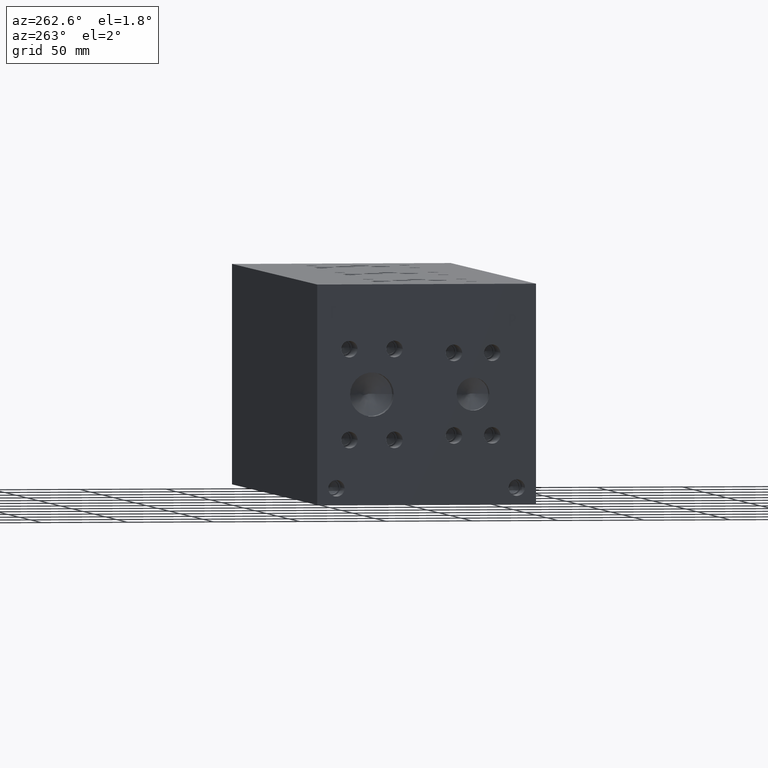
[diagram: clean part render]
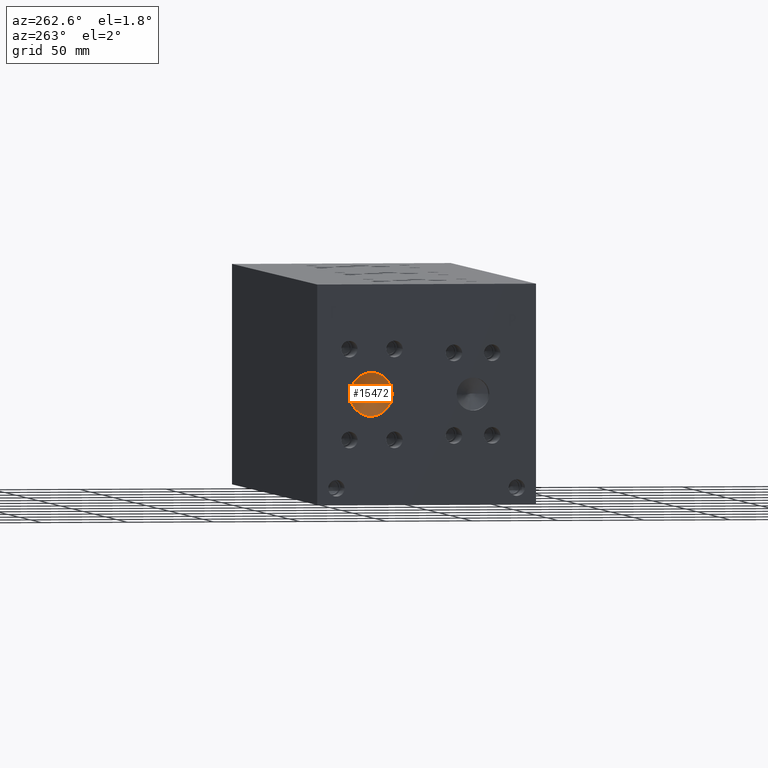
[diagram: same view with one face highlighted and labeled with its STEP entity id]
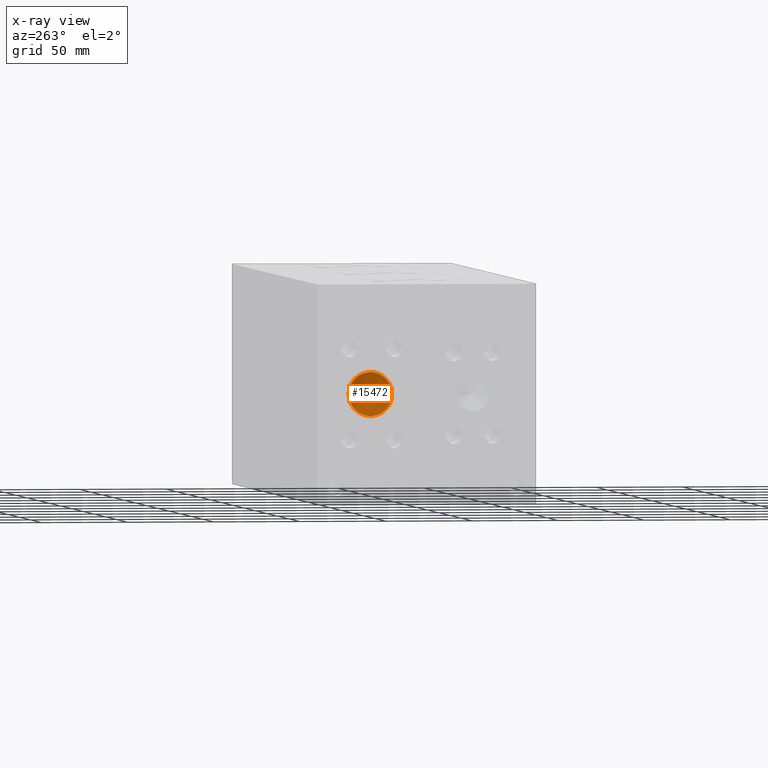
[diagram: x-ray of the same camera — body ghosted, the highlighted face saturated]
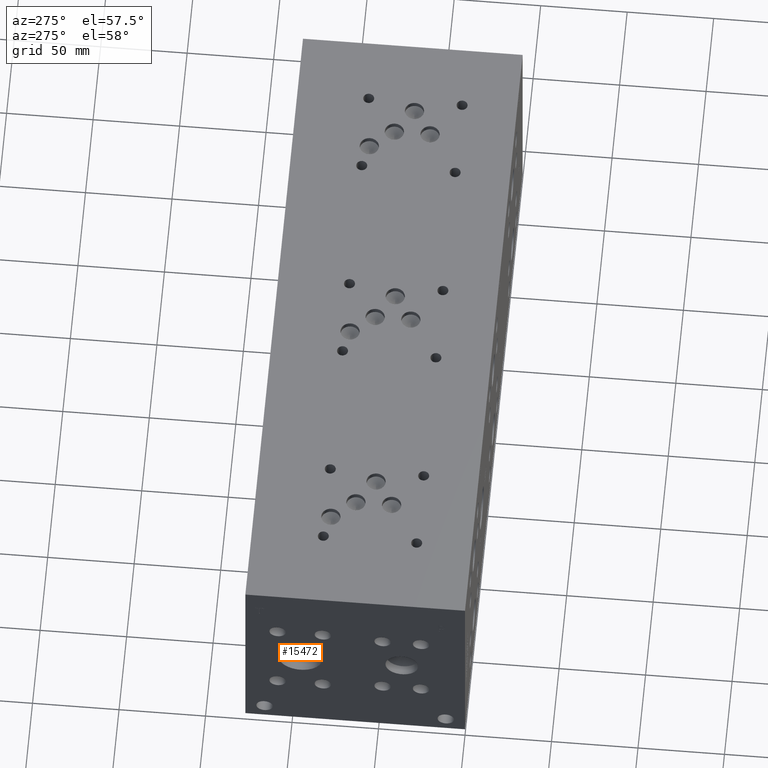
[diagram: same view with one face highlighted and labeled with its STEP entity id]
A machine part, auxiliary view. The second image highlights one B-rep face of the part: STEP entity #15472.
The next image is the same camera in x-ray: the body ghosted, the highlighted face saturated — about 0% of this face is hidden behind the body in this view.
A second angle (auxiliary view) of the same face is appended — the face is thin or edge-on in the first view.
In plain terms, the highlighted conical surface has half-angle 60 deg.
Its self-contained STEP definition (entity closure, byte-faithful):
#176=CONICAL_SURFACE('',#16349,6.35,1.0471975511966);
#451=CIRCLE('',#16350,12.7);
#452=CIRCLE('',#16351,12.7);
#1960=FACE_OUTER_BOUND('',#2897,.T.);
#2897=EDGE_LOOP('',(#13212,#13213,#13214,#13215));
#4335=LINE('',#26147,#5669);
#5669=VECTOR('',#19342,6.35);
#7357=VERTEX_POINT('',#26143);
#7358=VERTEX_POINT('',#26144);
#7359=VERTEX_POINT('',#26146);
#9419=EDGE_CURVE('',#7357,#7358,#451,.T.);
#9420=EDGE_CURVE('',#7358,#7359,#4335,.T.);
#9421=EDGE_CURVE('',#7358,#7357,#452,.T.);
#13212=ORIENTED_EDGE('',*,*,#9419,.T.);
#13213=ORIENTED_EDGE('',*,*,#9420,.T.);
#13214=ORIENTED_EDGE('',*,*,#9420,.F.);
#13215=ORIENTED_EDGE('',*,*,#9421,.T.);
#15472=ADVANCED_FACE('',(#1960),#176,.F.);
#16349=AXIS2_PLACEMENT_3D('',#26142,#19338,#19339);
#16350=AXIS2_PLACEMENT_3D('',#26145,#19340,#19341);
#16351=AXIS2_PLACEMENT_3D('',#26148,#19343,#19344);
#19338=DIRECTION('center_axis',(-1.,0.,0.));
#19339=DIRECTION('ref_axis',(0.,1.,0.));
#19340=DIRECTION('center_axis',(-1.,0.,0.));
#19341=DIRECTION('ref_axis',(0.,1.,0.));
#19342=DIRECTION('',(0.5,0.866025403784439,-1.06057523872491E-16));
#19343=DIRECTION('center_axis',(-1.,0.,0.));
#19344=DIRECTION('ref_axis',(0.,1.,0.));
#26142=CARTESIAN_POINT('Origin',(10.9985242093541,95.25,63.5));
#26143=CARTESIAN_POINT('',(7.33235,107.95,63.5));
#26144=CARTESIAN_POINT('',(7.33235,82.55,63.5));
#26145=CARTESIAN_POINT('Origin',(7.33235,95.25,63.5));
#26146=CARTESIAN_POINT('',(14.6646984187083,95.25,63.5));
#26147=CARTESIAN_POINT('',(10.9985242093541,88.9,63.5));
#26148=CARTESIAN_POINT('Origin',(7.33235,95.25,63.5));